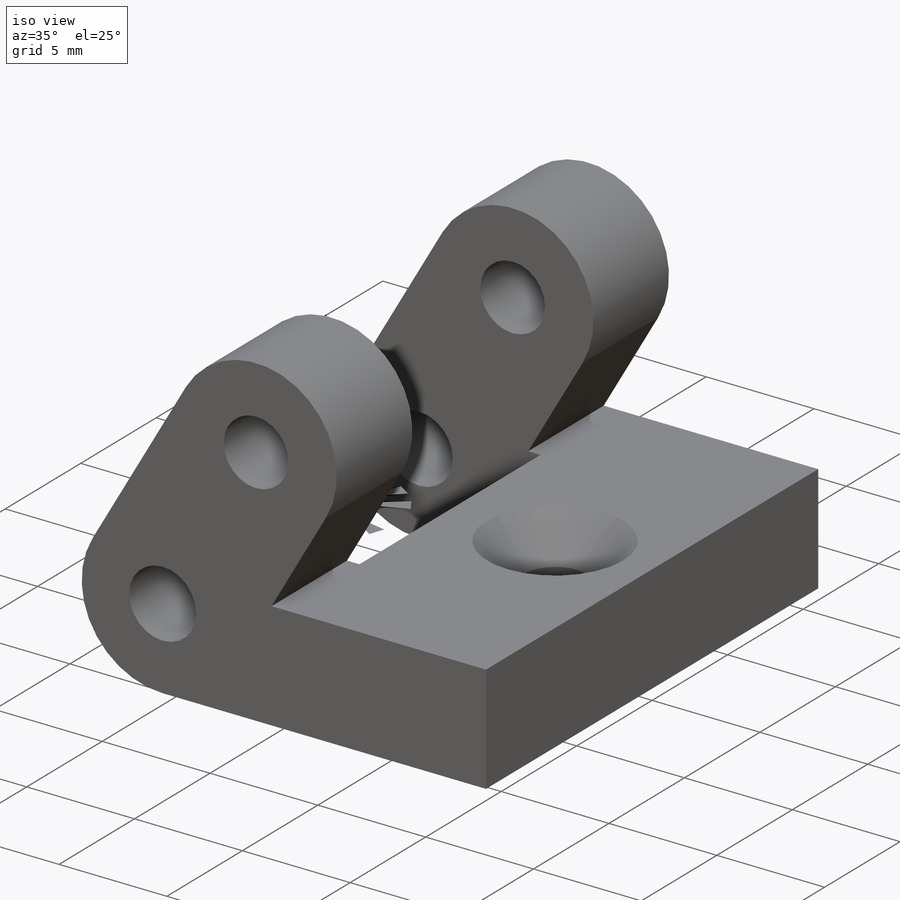
[diagram: iso view]
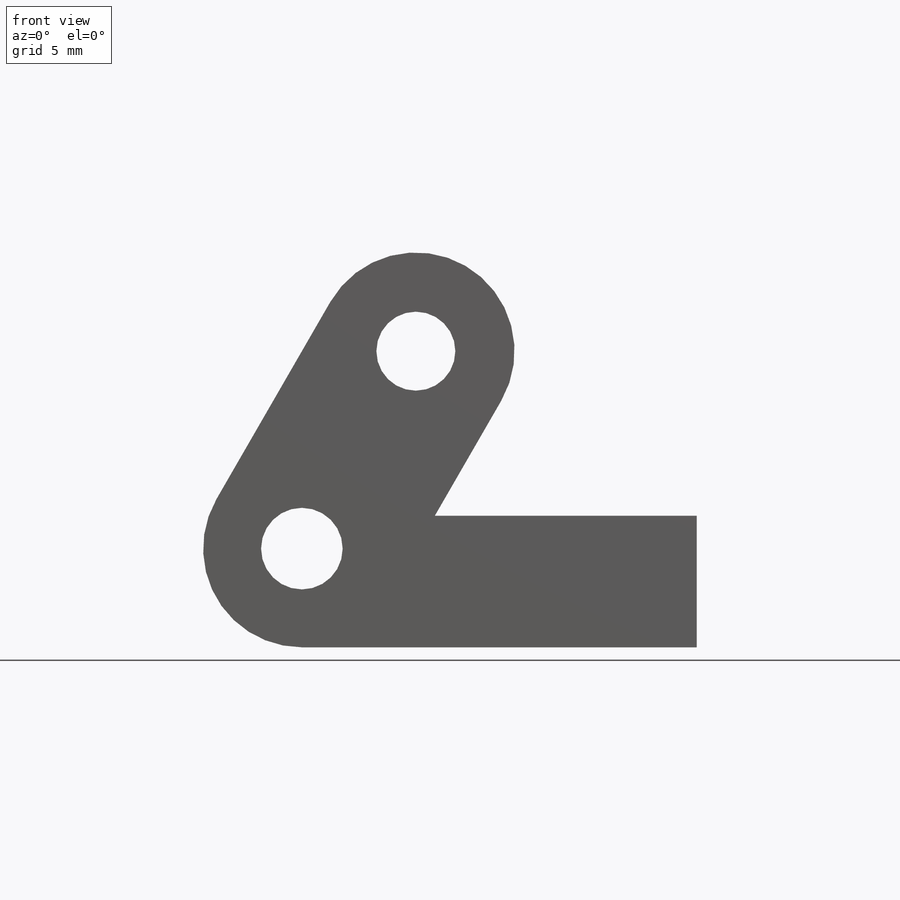
[diagram: front view]
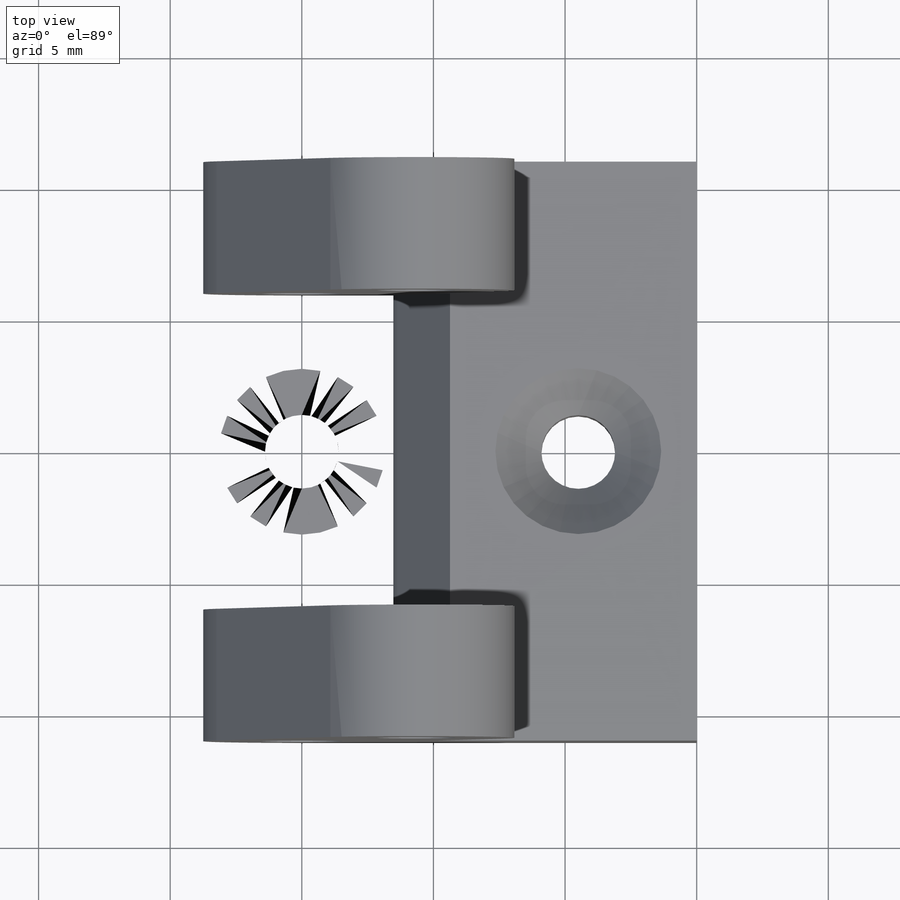
[diagram: top view]
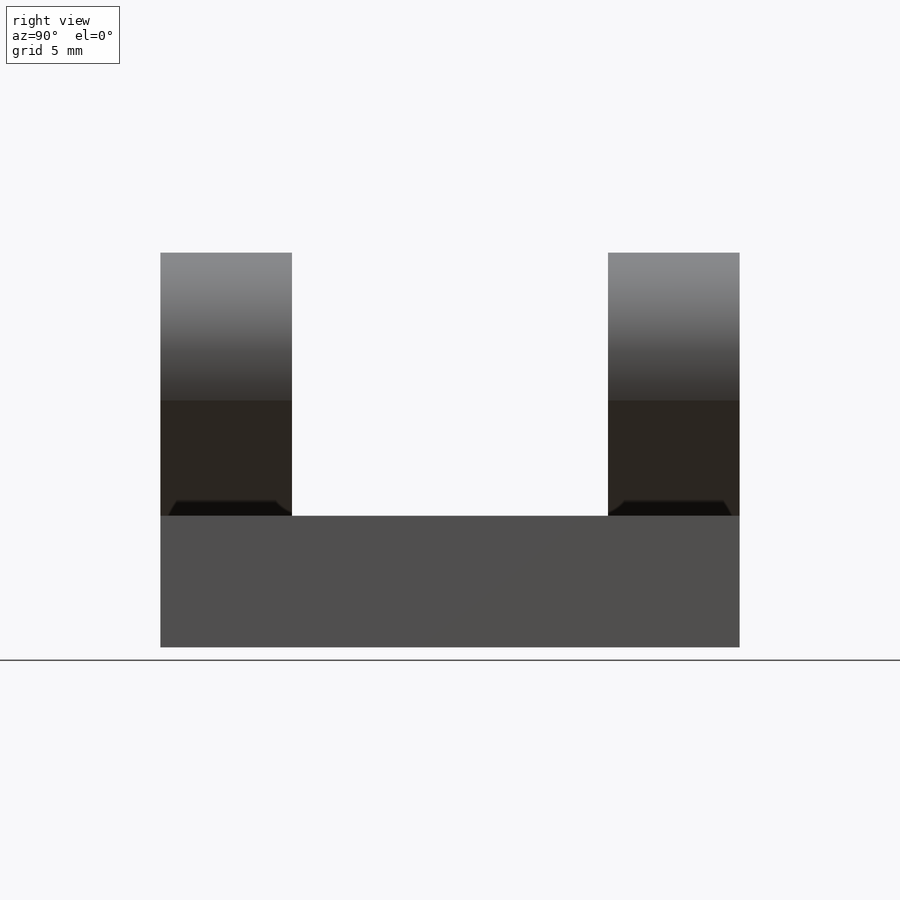
[diagram: right view]
SOLIDWORKS PART (.sldprt)
format: sldprt  version: not decoded by parser v0  size: 237,056 bytes
history: native  units: mm
features: sketch x4, material x1, extrude x1, cut_extrude x1, hole x1, fillet x1 (+13 scaffold rows collapsed)
feature tree (22):
  scaffold x13  (default folders/planes/origin — collapsed)
  material  "ABS"
  sketch  "Sketch1"  dims[c1.D1=3.1mm c1.D2=3.0mm c1.D3=12.0mm c1.D4=7.5mm c1.D5=5.0mm c1.D6=15.0mm c1.D7=~6.571961mm c2.D7=60.0deg c2.D3=7.5mm]
  extrude  "Boss-Extrude1"  Depth=22mm
  sketch  "Sketch5"  dims[D1=8.5mm]
  cut_extrude  "Cut-Extrude1"  Depth=12mm
  hole  "CSK for M3 Flat Head Machine Screw1"  Diameter=2.8mm Depth=10mm
  sketch  "Sketch4"  dims[D1=10.5mm]
  sketch  "Sketch3"  dims[hole-wizard template sketch: 39 standard entries collapsed; hole parameters kept: c13.Hole Dia.=2.8mm c13.Hole Depth=10.0mm c13.Near C'Sink Dia.=6.3mm c13.D4=~33.297463mm c13.Near C'Sink Angle=90.0deg c14.D5=~14.816244mm c14.Drill Angle=118.0deg]
  fillet  "Fillet1"  Radius=1mm
decode coverage: 8 of 8 modeling features carry decoded parameters
note: ~ marks probable driven/reference dimensions
note: suppression state not decoded; provenance and decode notes live in map.json
